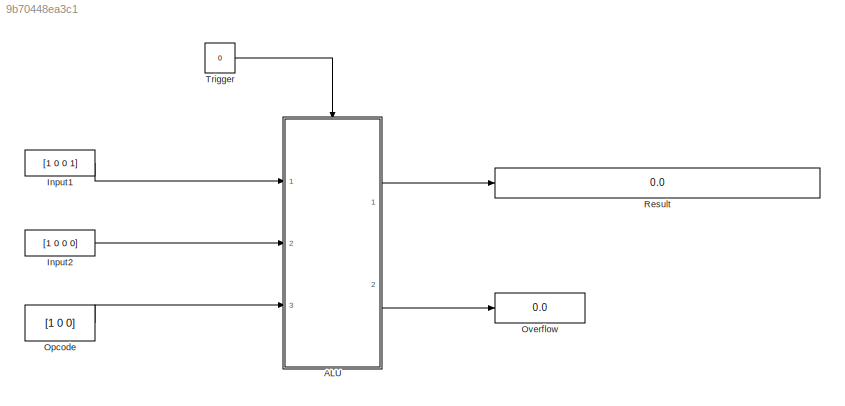
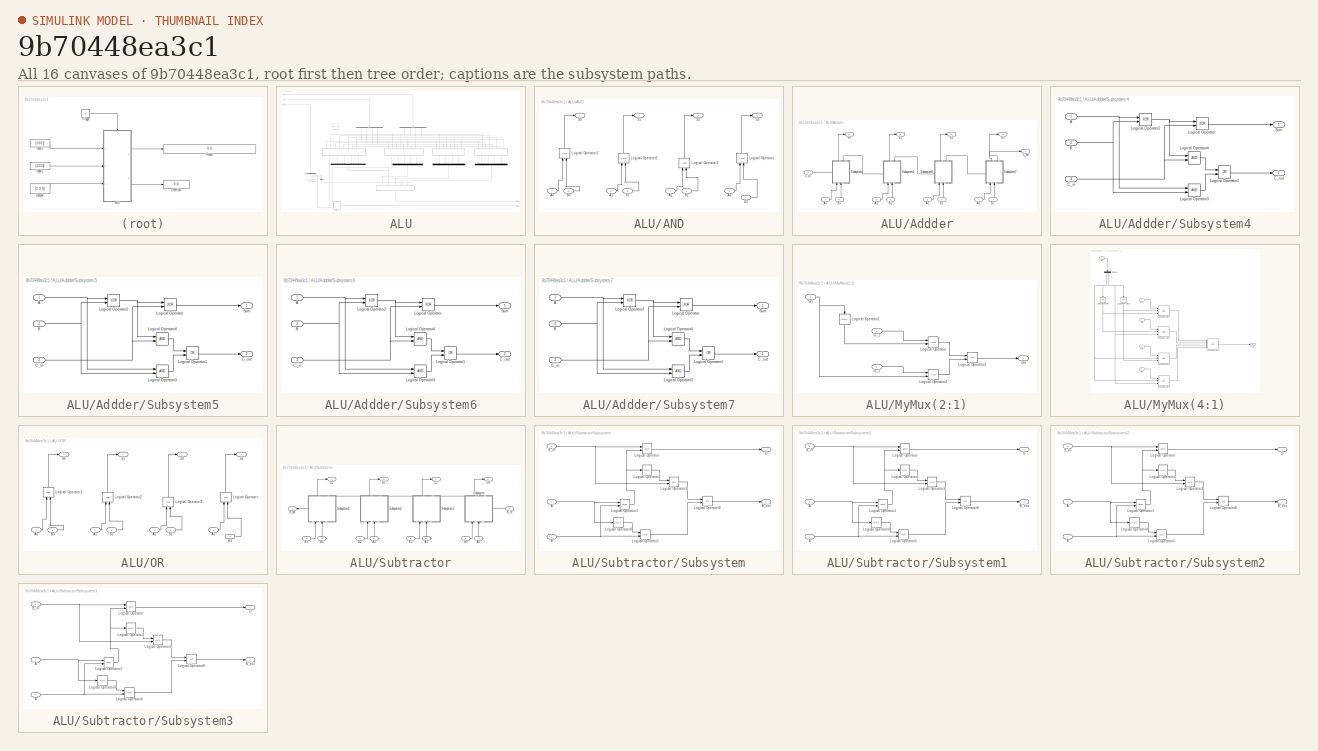
[diagram: thumbnail index - all 16 canvases of the model, root first then tree order]
MODEL slx_9b70448ea3c1
KIND model
CONFIG AbsTol = auto
CONFIG EnableMultiTasking = off
CONFIG FixedStep = auto
CONFIG MaxStep = auto
CONFIG MinStep = auto
CONFIG RelTol = 1e-3
CONFIG SampleTimeConstraint = Unconstrained
CONFIG SolverName = VariableStepAuto
CONFIG StartTime = 0.0
CONFIG StopTime = 10.0
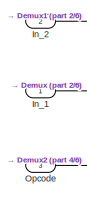
[diagram: ALU - part 1/6, top left region]
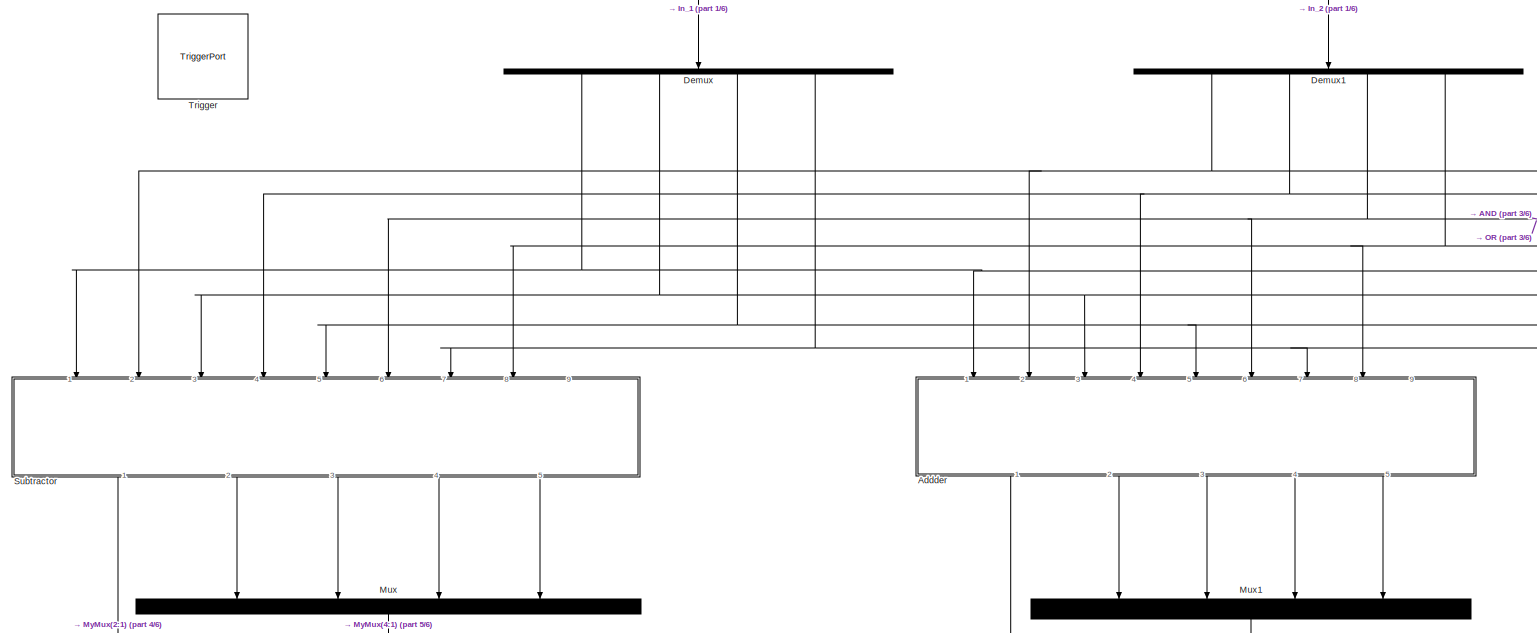
[diagram: ALU - part 2/6, central region]
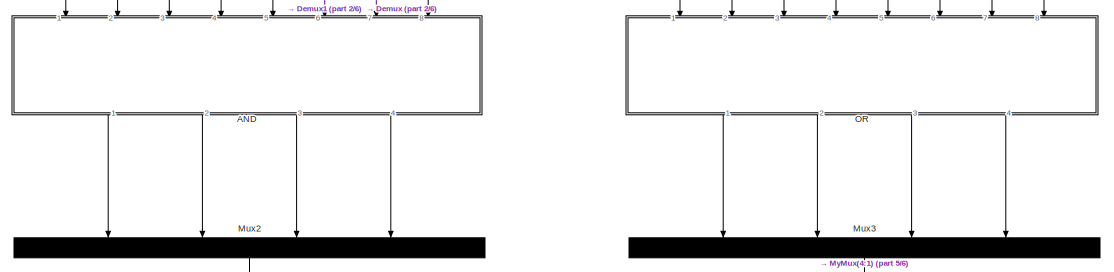
[diagram: ALU - part 3/6, middle right region]
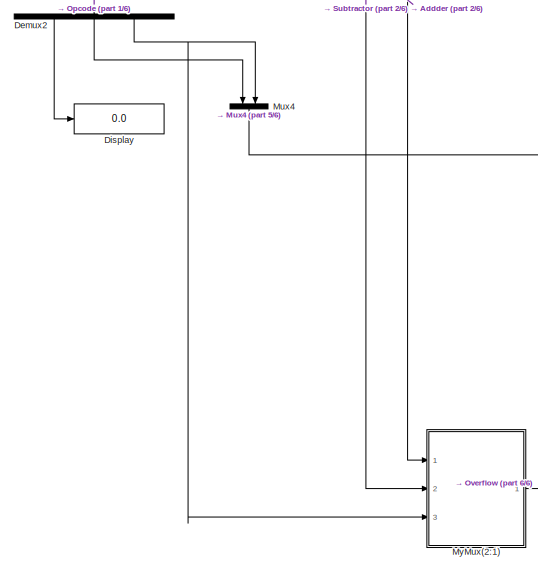
[diagram: ALU - part 4/6, bottom left region]
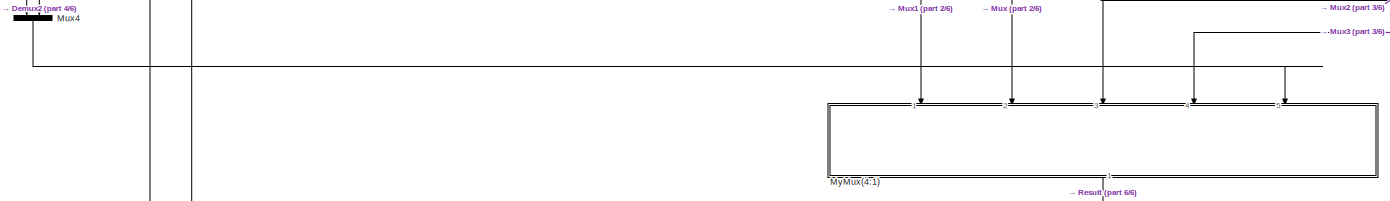
[diagram: ALU - part 5/6, bottom center region]
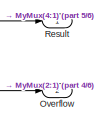
[diagram: ALU - part 6/6, bottom right region]
BLOCK [SubSystem] ALU
  Ports = [3, 2, 0, 1]
  RequestExecContextInheritance = off
BLOCK [SubSystem] ALU/AND
  NameLocation = left
  Ports = [8, 4]
  RequestExecContextInheritance = off
BLOCK [Inport] ALU/AND/A0
  Port = 7
BLOCK [Inport] ALU/AND/A1
  Port = 5
BLOCK [Inport] ALU/AND/A2
  Port = 3
BLOCK [Inport] ALU/AND/A3
BLOCK [Inport] ALU/AND/B0
  Port = 8
BLOCK [Inport] ALU/AND/B1
  Port = 6
BLOCK [Inport] ALU/AND/B2
  Port = 4
BLOCK [Inport] ALU/AND/B3
  Port = 2
BLOCK [Logic] ALU/AND/Logical Operator
  AllPortsSameDT = off
  NameLocation = right
  OutDataTypeStr = boolean
  Ports = [2, 1]
BLOCK [Logic] ALU/AND/Logical Operator1
  AllPortsSameDT = off
  NameLocation = right
  OutDataTypeStr = boolean
  Ports = [2, 1]
BLOCK [Logic] ALU/AND/Logical Operator2
  AllPortsSameDT = off
  NameLocation = right
  OutDataTypeStr = boolean
  Ports = [2, 1]
BLOCK [Logic] ALU/AND/Logical Operator3
  AllPortsSameDT = off
  NameLocation = right
  OutDataTypeStr = boolean
  Ports = [2, 1]
BLOCK [Outport] ALU/AND/S0
  Port = 4
BLOCK [Outport] ALU/AND/S1
  Port = 3
BLOCK [Outport] ALU/AND/S2
  Port = 2
BLOCK [Outport] ALU/AND/S3
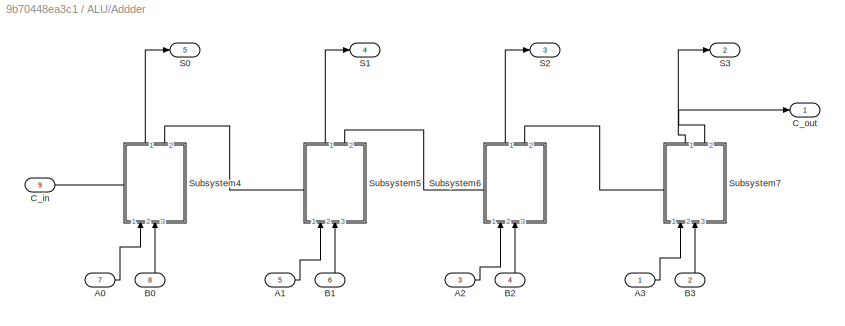
BLOCK [SubSystem] ALU/Addder
  NameLocation = left
  Ports = [9, 5]
  RequestExecContextInheritance = off
BLOCK [Inport] ALU/Addder/A0
  Port = 7
BLOCK [Inport] ALU/Addder/A1
  Port = 5
BLOCK [Inport] ALU/Addder/A2
  Port = 3
BLOCK [Inport] ALU/Addder/A3
BLOCK [Inport] ALU/Addder/B0
  Port = 8
BLOCK [Inport] ALU/Addder/B1
  Port = 6
BLOCK [Inport] ALU/Addder/B2
  Port = 4
BLOCK [Inport] ALU/Addder/B3
  Port = 2
BLOCK [Inport] ALU/Addder/C_in
  Port = 9
BLOCK [Outport] ALU/Addder/C_out
BLOCK [Outport] ALU/Addder/S0
  Port = 5
BLOCK [Outport] ALU/Addder/S1
  Port = 4
BLOCK [Outport] ALU/Addder/S2
  Port = 3
BLOCK [Outport] ALU/Addder/S3
  Port = 2
BLOCK [SubSystem] ALU/Addder/Subsystem4
  NameLocation = right
  PortSchema = {"entries":[{"content":{"sides":[{"content":{"connectorIds":["In1","In2"]},"type":"ConnectorPlacement.EquallySpacedRectSide","uuid":"38d1d783-1e84-469f-b88f-34400794f458"},{"content":{"connectorIds":["Out1","Out2"],"side":"RIGHT"},"type":"ConnectorPlacement.EquallySpacedRectSide","uuid":"9549b396-3b16-432f-9c12-dae7a5b8dc11"},{"content":{"connectorIds":["In3"],"side":"TOP"},"type":"ConnectorPlacem...<+258ch>  <repeated x4 — deduplicated; at blocks: Subsystem4, Subsystem5, Subsystem6, Subsystem7>
  Ports = [3, 2]
  RequestExecContextInheritance = off
BLOCK [Inport] ALU/Addder/Subsystem4/A
BLOCK [Inport] ALU/Addder/Subsystem4/B
  Port = 2
BLOCK [Inport] ALU/Addder/Subsystem4/C_in
  Port = 3
BLOCK [Outport] ALU/Addder/Subsystem4/C_out
  Port = 2
BLOCK [Logic] ALU/Addder/Subsystem4/Logical Operator
  AllPortsSameDT = off
  Operator = XOR
  OutDataTypeStr = boolean
  Ports = [2, 1]
BLOCK [Logic] ALU/Addder/Subsystem4/Logical Operator1
  AllPortsSameDT = off
  Operator = OR
  OutDataTypeStr = boolean
  Ports = [2, 1]
BLOCK [Logic] ALU/Addder/Subsystem4/Logical Operator2
  AllPortsSameDT = off
  Operator = XOR
  OutDataTypeStr = boolean
  Ports = [2, 1]
BLOCK [Logic] ALU/Addder/Subsystem4/Logical Operator3
  AllPortsSameDT = off
  OutDataTypeStr = boolean
  Ports = [2, 1]
BLOCK [Logic] ALU/Addder/Subsystem4/Logical Operator4
  AllPortsSameDT = off
  OutDataTypeStr = boolean
  Ports = [2, 1]
BLOCK [Outport] ALU/Addder/Subsystem4/Sum
BLOCK [SubSystem] ALU/Addder/Subsystem5
  NameLocation = right
  Ports = [3, 2]
  RequestExecContextInheritance = off
BLOCK [Inport] ALU/Addder/Subsystem5/A
BLOCK [Inport] ALU/Addder/Subsystem5/B
  Port = 2
BLOCK [Inport] ALU/Addder/Subsystem5/C_in
  Port = 3
BLOCK [Outport] ALU/Addder/Subsystem5/C_out
  Port = 2
BLOCK [Logic] ALU/Addder/Subsystem5/Logical Operator
  AllPortsSameDT = off
  Operator = XOR
  OutDataTypeStr = boolean
  Ports = [2, 1]
BLOCK [Logic] ALU/Addder/Subsystem5/Logical Operator1
  AllPortsSameDT = off
  Operator = OR
  OutDataTypeStr = boolean
  Ports = [2, 1]
BLOCK [Logic] ALU/Addder/Subsystem5/Logical Operator2
  AllPortsSameDT = off
  Operator = XOR
  OutDataTypeStr = boolean
  Ports = [2, 1]
BLOCK [Logic] ALU/Addder/Subsystem5/Logical Operator3
  AllPortsSameDT = off
  OutDataTypeStr = boolean
  Ports = [2, 1]
BLOCK [Logic] ALU/Addder/Subsystem5/Logical Operator4
  AllPortsSameDT = off
  OutDataTypeStr = boolean
  Ports = [2, 1]
BLOCK [Outport] ALU/Addder/Subsystem5/Sum
BLOCK [SubSystem] ALU/Addder/Subsystem6
  NameLocation = right
  Ports = [3, 2]
  RequestExecContextInheritance = off
BLOCK [Inport] ALU/Addder/Subsystem6/A
BLOCK [Inport] ALU/Addder/Subsystem6/B
  Port = 2
BLOCK [Inport] ALU/Addder/Subsystem6/C_in
  Port = 3
BLOCK [Outport] ALU/Addder/Subsystem6/C_out
  Port = 2
BLOCK [Logic] ALU/Addder/Subsystem6/Logical Operator
  AllPortsSameDT = off
  Operator = XOR
  OutDataTypeStr = boolean
  Ports = [2, 1]
BLOCK [Logic] ALU/Addder/Subsystem6/Logical Operator1
  AllPortsSameDT = off
  Operator = OR
  OutDataTypeStr = boolean
  Ports = [2, 1]
BLOCK [Logic] ALU/Addder/Subsystem6/Logical Operator2
  AllPortsSameDT = off
  Operator = XOR
  OutDataTypeStr = boolean
  Ports = [2, 1]
BLOCK [Logic] ALU/Addder/Subsystem6/Logical Operator3
  AllPortsSameDT = off
  OutDataTypeStr = boolean
  Ports = [2, 1]
BLOCK [Logic] ALU/Addder/Subsystem6/Logical Operator4
  AllPortsSameDT = off
  OutDataTypeStr = boolean
  Ports = [2, 1]
BLOCK [Outport] ALU/Addder/Subsystem6/Sum
BLOCK [SubSystem] ALU/Addder/Subsystem7
  NameLocation = right
  Ports = [3, 2]
  RequestExecContextInheritance = off
BLOCK [Inport] ALU/Addder/Subsystem7/A
BLOCK [Inport] ALU/Addder/Subsystem7/B
  Port = 2
BLOCK [Inport] ALU/Addder/Subsystem7/C_in
  Port = 3
BLOCK [Outport] ALU/Addder/Subsystem7/C_out
  Port = 2
BLOCK [Logic] ALU/Addder/Subsystem7/Logical Operator
  AllPortsSameDT = off
  Operator = XOR
  OutDataTypeStr = boolean
  Ports = [2, 1]
BLOCK [Logic] ALU/Addder/Subsystem7/Logical Operator1
  AllPortsSameDT = off
  Operator = OR
  OutDataTypeStr = boolean
  Ports = [2, 1]
BLOCK [Logic] ALU/Addder/Subsystem7/Logical Operator2
  AllPortsSameDT = off
  Operator = XOR
  OutDataTypeStr = boolean
  Ports = [2, 1]
BLOCK [Logic] ALU/Addder/Subsystem7/Logical Operator3
  AllPortsSameDT = off
  OutDataTypeStr = boolean
  Ports = [2, 1]
BLOCK [Logic] ALU/Addder/Subsystem7/Logical Operator4
  AllPortsSameDT = off
  OutDataTypeStr = boolean
  Ports = [2, 1]
BLOCK [Outport] ALU/Addder/Subsystem7/Sum
BLOCK [Demux] ALU/Demux
  NameLocation = left
  Ports = [1, 4]
BLOCK [Demux] ALU/Demux1
  NameLocation = left
  Ports = [1, 4]
BLOCK [Demux] ALU/Demux2
  NameLocation = left
  Outputs = 3
  Ports = [1, 3]
BLOCK [Display] ALU/Display
  Decimation = 1
  Ports = [1]
BLOCK [Inport] ALU/In_1
BLOCK [Inport] ALU/In_2
  Port = 2
BLOCK [Mux] ALU/Mux
  DisplayOption = bar
  NameLocation = left
  Ports = [4, 1]
BLOCK [Mux] ALU/Mux1
  DisplayOption = bar
  NameLocation = left
  Ports = [4, 1]
BLOCK [Mux] ALU/Mux2
  DisplayOption = bar
  NameLocation = left
  Ports = [4, 1]
BLOCK [Mux] ALU/Mux3
  DisplayOption = bar
  NameLocation = left
  Ports = [4, 1]
BLOCK [Mux] ALU/Mux4
  DisplayOption = bar
  Inputs = 2
  NameLocation = left
  Ports = [2, 1]
BLOCK [SubSystem] ALU/MyMux(2:1)
  Ports = [3, 1]
  RequestExecContextInheritance = off
BLOCK [Inport] ALU/MyMux(2:1)/In_1
BLOCK [Inport] ALU/MyMux(2:1)/In_2
  Port = 2
BLOCK [Logic] ALU/MyMux(2:1)/Logical Operator
  AllPortsSameDT = off
  OutDataTypeStr = boolean
  Ports = [2, 1]
BLOCK [Logic] ALU/MyMux(2:1)/Logical Operator1
  AllPortsSameDT = off
  NameLocation = left
  Operator = NOT
  OutDataTypeStr = boolean
  Ports = [1, 1]
BLOCK [Logic] ALU/MyMux(2:1)/Logical Operator2
  AllPortsSameDT = off
  OutDataTypeStr = boolean
  Ports = [2, 1]
BLOCK [Logic] ALU/MyMux(2:1)/Logical Operator3
  AllPortsSameDT = off
  Operator = OR
  OutDataTypeStr = boolean
  Ports = [2, 1]
BLOCK [Outport] ALU/MyMux(2:1)/Out
BLOCK [Inport] ALU/MyMux(2:1)/Sel
  Port = 3
BLOCK [SubSystem] ALU/MyMux(4:1)
  NameLocation = left
  Ports = [5, 1]
  RequestExecContextInheritance = off
BLOCK [Inport] ALU/MyMux(4:1)/AND
  Port = 3
BLOCK [Demux] ALU/MyMux(4:1)/Demux2
  NameLocation = left
  Outputs = 2
  Ports = [1, 2]
BLOCK [Inport] ALU/MyMux(4:1)/Diff
  Port = 2
BLOCK [Logic] ALU/MyMux(4:1)/Logical Operator
  AllPortsSameDT = off
  NameLocation = left
  Operator = NOT
  OutDataTypeStr = boolean
  Ports = [1, 1]
BLOCK [Logic] ALU/MyMux(4:1)/Logical Operator1
  AllPortsSameDT = off
  NameLocation = left
  Operator = NOT
  OutDataTypeStr = boolean
  Ports = [1, 1]
BLOCK [Logic] ALU/MyMux(4:1)/Logical Operator2
  AllPortsSameDT = off
  Inputs = 3
  OutDataTypeStr = boolean
  Ports = [3, 1]
BLOCK [Logic] ALU/MyMux(4:1)/Logical Operator3
  AllPortsSameDT = off
  Inputs = 3
  OutDataTypeStr = boolean
  Ports = [3, 1]
BLOCK [Logic] ALU/MyMux(4:1)/Logical Operator4
  AllPortsSameDT = off
  Inputs = 3
  OutDataTypeStr = boolean
  Ports = [3, 1]
BLOCK [Logic] ALU/MyMux(4:1)/Logical Operator5
  AllPortsSameDT = off
  Inputs = 3
  OutDataTypeStr = boolean
  Ports = [3, 1]
BLOCK [Logic] ALU/MyMux(4:1)/Logical Operator6
  AllPortsSameDT = off
  Inputs = 4
  Operator = OR
  OutDataTypeStr = boolean
  Ports = [4, 1]
BLOCK [Inport] ALU/MyMux(4:1)/OR
  Port = 4
BLOCK [Outport] ALU/MyMux(4:1)/Out
BLOCK [Inport] ALU/MyMux(4:1)/Sel
  Port = 5
BLOCK [Inport] ALU/MyMux(4:1)/Sum
BLOCK [SubSystem] ALU/OR
  NameLocation = left
  Ports = [8, 4]
  RequestExecContextInheritance = off
BLOCK [Inport] ALU/OR/A0
  Port = 7
BLOCK [Inport] ALU/OR/A1
  Port = 5
BLOCK [Inport] ALU/OR/A2
  Port = 3
BLOCK [Inport] ALU/OR/A3
BLOCK [Inport] ALU/OR/B0
  Port = 8
BLOCK [Inport] ALU/OR/B1
  Port = 6
BLOCK [Inport] ALU/OR/B2
  Port = 4
BLOCK [Inport] ALU/OR/B3
  Port = 2
BLOCK [Logic] ALU/OR/Logical Operator
  AllPortsSameDT = off
  NameLocation = right
  Operator = OR
  OutDataTypeStr = boolean
  Ports = [2, 1]
BLOCK [Logic] ALU/OR/Logical Operator1
  AllPortsSameDT = off
  NameLocation = right
  Operator = OR
  OutDataTypeStr = boolean
  Ports = [2, 1]
BLOCK [Logic] ALU/OR/Logical Operator2
  AllPortsSameDT = off
  NameLocation = right
  Operator = OR
  OutDataTypeStr = boolean
  Ports = [2, 1]
BLOCK [Logic] ALU/OR/Logical Operator3
  AllPortsSameDT = off
  NameLocation = right
  Operator = OR
  OutDataTypeStr = boolean
  Ports = [2, 1]
BLOCK [Outport] ALU/OR/S0
  Port = 4
BLOCK [Outport] ALU/OR/S1
  Port = 3
BLOCK [Outport] ALU/OR/S2
  Port = 2
BLOCK [Outport] ALU/OR/S3
BLOCK [Inport] ALU/Opcode
  Port = 3
BLOCK [Outport] ALU/Overflow
  Port = 2
BLOCK [Outport] ALU/Result
BLOCK [SubSystem] ALU/Subtractor
  NameLocation = left
  Ports = [9, 5]
  RequestExecContextInheritance = off
BLOCK [Inport] ALU/Subtractor/A0
  Port = 7
BLOCK [Inport] ALU/Subtractor/A1
  Port = 5
BLOCK [Inport] ALU/Subtractor/A2
  Port = 3
BLOCK [Inport] ALU/Subtractor/A3
BLOCK [Inport] ALU/Subtractor/B0
  Port = 8
BLOCK [Inport] ALU/Subtractor/B1
  Port = 6
BLOCK [Inport] ALU/Subtractor/B2
  Port = 4
BLOCK [Inport] ALU/Subtractor/B3
  Port = 2
BLOCK [Inport] ALU/Subtractor/B_in
  Port = 9
BLOCK [Outport] ALU/Subtractor/B_out
BLOCK [Outport] ALU/Subtractor/D0
  Port = 5
BLOCK [Outport] ALU/Subtractor/D1
  Port = 4
BLOCK [Outport] ALU/Subtractor/D2
  Port = 3
BLOCK [Outport] ALU/Subtractor/D3
  Port = 2
BLOCK [SubSystem] ALU/Subtractor/Subsystem
  NameLocation = right
  PortSchema = {"entries":[{"content":{"sides":[{"content":{"connectorIds":["In1","In2"]},"type":"ConnectorPlacement.EquallySpacedRectSide","uuid":"38d1d783-1e84-469f-b88f-34400794f458"},{"content":{"connectorIds":["Out1"],"side":"RIGHT"},"type":"ConnectorPlacement.EquallySpacedRectSide","uuid":"9549b396-3b16-432f-9c12-dae7a5b8dc11"},{"content":{"connectorIds":["Out2"],"side":"TOP"},"type":"ConnectorPlacement.Eq...<+401ch>  <repeated x4 — deduplicated; at blocks: Subsystem, Subsystem1, Subsystem2, Subsystem3>
  Ports = [3, 2]
  RequestExecContextInheritance = off
BLOCK [Inport] ALU/Subtractor/Subsystem/A
  Port = 2
BLOCK [Inport] ALU/Subtractor/Subsystem/B
BLOCK [Inport] ALU/Subtractor/Subsystem/B_in
  Port = 3
BLOCK [Outport] ALU/Subtractor/Subsystem/B_out
  Port = 2
BLOCK [Outport] ALU/Subtractor/Subsystem/D
BLOCK [Logic] ALU/Subtractor/Subsystem/Logical Operator
  AllPortsSameDT = off
  Operator = XOR
  OutDataTypeStr = boolean
  Ports = [2, 1]
BLOCK [Logic] ALU/Subtractor/Subsystem/Logical Operator1
  AllPortsSameDT = off
  Operator = XOR
  OutDataTypeStr = boolean
  Ports = [2, 1]
BLOCK [Logic] ALU/Subtractor/Subsystem/Logical Operator2
  AllPortsSameDT = off
  Operator = NOT
  OutDataTypeStr = boolean
  Ports = [1, 1]
BLOCK [Logic] ALU/Subtractor/Subsystem/Logical Operator3
  AllPortsSameDT = off
  OutDataTypeStr = boolean
  Ports = [2, 1]
BLOCK [Logic] ALU/Subtractor/Subsystem/Logical Operator4
  AllPortsSameDT = off
  Operator = NOT
  OutDataTypeStr = boolean
  Ports = [1, 1]
BLOCK [Logic] ALU/Subtractor/Subsystem/Logical Operator5
  AllPortsSameDT = off
  OutDataTypeStr = boolean
  Ports = [2, 1]
BLOCK [Logic] ALU/Subtractor/Subsystem/Logical Operator8
  AllPortsSameDT = off
  Operator = OR
  OutDataTypeStr = boolean
  Ports = [2, 1]
BLOCK [SubSystem] ALU/Subtractor/Subsystem1
  NameLocation = right
  Ports = [3, 2]
  RequestExecContextInheritance = off
BLOCK [Inport] ALU/Subtractor/Subsystem1/A
  Port = 2
BLOCK [Inport] ALU/Subtractor/Subsystem1/B
BLOCK [Inport] ALU/Subtractor/Subsystem1/B_in
  Port = 3
BLOCK [Outport] ALU/Subtractor/Subsystem1/B_out
  Port = 2
BLOCK [Outport] ALU/Subtractor/Subsystem1/D
BLOCK [Logic] ALU/Subtractor/Subsystem1/Logical Operator
  AllPortsSameDT = off
  Operator = XOR
  OutDataTypeStr = boolean
  Ports = [2, 1]
BLOCK [Logic] ALU/Subtractor/Subsystem1/Logical Operator1
  AllPortsSameDT = off
  Operator = XOR
  OutDataTypeStr = boolean
  Ports = [2, 1]
BLOCK [Logic] ALU/Subtractor/Subsystem1/Logical Operator2
  AllPortsSameDT = off
  Operator = NOT
  OutDataTypeStr = boolean
  Ports = [1, 1]
BLOCK [Logic] ALU/Subtractor/Subsystem1/Logical Operator3
  AllPortsSameDT = off
  OutDataTypeStr = boolean
  Ports = [2, 1]
BLOCK [Logic] ALU/Subtractor/Subsystem1/Logical Operator4
  AllPortsSameDT = off
  Operator = NOT
  OutDataTypeStr = boolean
  Ports = [1, 1]
BLOCK [Logic] ALU/Subtractor/Subsystem1/Logical Operator5
  AllPortsSameDT = off
  OutDataTypeStr = boolean
  Ports = [2, 1]
BLOCK [Logic] ALU/Subtractor/Subsystem1/Logical Operator8
  AllPortsSameDT = off
  Operator = OR
  OutDataTypeStr = boolean
  Ports = [2, 1]
BLOCK [SubSystem] ALU/Subtractor/Subsystem2
  NameLocation = right
  Ports = [3, 2]
  RequestExecContextInheritance = off
BLOCK [Inport] ALU/Subtractor/Subsystem2/A
  Port = 2
BLOCK [Inport] ALU/Subtractor/Subsystem2/B
BLOCK [Inport] ALU/Subtractor/Subsystem2/B_in
  Port = 3
BLOCK [Outport] ALU/Subtractor/Subsystem2/B_out
  Port = 2
BLOCK [Outport] ALU/Subtractor/Subsystem2/D
BLOCK [Logic] ALU/Subtractor/Subsystem2/Logical Operator
  AllPortsSameDT = off
  Operator = XOR
  OutDataTypeStr = boolean
  Ports = [2, 1]
BLOCK [Logic] ALU/Subtractor/Subsystem2/Logical Operator1
  AllPortsSameDT = off
  Operator = XOR
  OutDataTypeStr = boolean
  Ports = [2, 1]
BLOCK [Logic] ALU/Subtractor/Subsystem2/Logical Operator2
  AllPortsSameDT = off
  Operator = NOT
  OutDataTypeStr = boolean
  Ports = [1, 1]
BLOCK [Logic] ALU/Subtractor/Subsystem2/Logical Operator3
  AllPortsSameDT = off
  OutDataTypeStr = boolean
  Ports = [2, 1]
BLOCK [Logic] ALU/Subtractor/Subsystem2/Logical Operator4
  AllPortsSameDT = off
  Operator = NOT
  OutDataTypeStr = boolean
  Ports = [1, 1]
BLOCK [Logic] ALU/Subtractor/Subsystem2/Logical Operator5
  AllPortsSameDT = off
  OutDataTypeStr = boolean
  Ports = [2, 1]
BLOCK [Logic] ALU/Subtractor/Subsystem2/Logical Operator8
  AllPortsSameDT = off
  Operator = OR
  OutDataTypeStr = boolean
  Ports = [2, 1]
BLOCK [SubSystem] ALU/Subtractor/Subsystem3
  NameLocation = right
  Ports = [3, 2]
  RequestExecContextInheritance = off
BLOCK [Inport] ALU/Subtractor/Subsystem3/A
  Port = 2
BLOCK [Inport] ALU/Subtractor/Subsystem3/B
BLOCK [Inport] ALU/Subtractor/Subsystem3/B_in
  Port = 3
BLOCK [Outport] ALU/Subtractor/Subsystem3/B_out
  Port = 2
BLOCK [Outport] ALU/Subtractor/Subsystem3/D
BLOCK [Logic] ALU/Subtractor/Subsystem3/Logical Operator
  AllPortsSameDT = off
  Operator = XOR
  OutDataTypeStr = boolean
  Ports = [2, 1]
BLOCK [Logic] ALU/Subtractor/Subsystem3/Logical Operator1
  AllPortsSameDT = off
  Operator = XOR
  OutDataTypeStr = boolean
  Ports = [2, 1]
BLOCK [Logic] ALU/Subtractor/Subsystem3/Logical Operator2
  AllPortsSameDT = off
  Operator = NOT
  OutDataTypeStr = boolean
  Ports = [1, 1]
BLOCK [Logic] ALU/Subtractor/Subsystem3/Logical Operator3
  AllPortsSameDT = off
  OutDataTypeStr = boolean
  Ports = [2, 1]
BLOCK [Logic] ALU/Subtractor/Subsystem3/Logical Operator4
  AllPortsSameDT = off
  Operator = NOT
  OutDataTypeStr = boolean
  Ports = [1, 1]
BLOCK [Logic] ALU/Subtractor/Subsystem3/Logical Operator5
  AllPortsSameDT = off
  OutDataTypeStr = boolean
  Ports = [2, 1]
BLOCK [Logic] ALU/Subtractor/Subsystem3/Logical Operator8
  AllPortsSameDT = off
  Operator = OR
  OutDataTypeStr = boolean
  Ports = [2, 1]
BLOCK [TriggerPort] ALU/Trigger
  PortDimensions = 1
  Ports = []
  StatesWhenEnabling = held
  VariantControl = (inherit)
BLOCK [Constant] Input1
  Value = [1 0 0 1]
BLOCK [Constant] Input2
  Value = [1 0 0 0]
BLOCK [Constant] Opcode
  Value = [1 0 0]
BLOCK [Display] Overflow
  Decimation = 1
  Ports = [1]
BLOCK [Display] Result
  Decimation = 1
  Ports = [1]
BLOCK [Constant] Trigger
  Value = 0
LINE ALU/AND/A0:1 -> ALU/AND/Logical Operator1:1
LINE ALU/AND/A1:1 -> ALU/AND/Logical Operator2:1
LINE ALU/AND/A2:1 -> ALU/AND/Logical Operator3:1
LINE ALU/AND/A3:1 -> ALU/AND/Logical Operator:1
LINE ALU/AND/B0:1 -> ALU/AND/Logical Operator1:2
LINE ALU/AND/B1:1 -> ALU/AND/Logical Operator2:2
LINE ALU/AND/B2:1 -> ALU/AND/Logical Operator3:2
LINE ALU/AND/B3:1 -> ALU/AND/Logical Operator:2
LINE ALU/AND/Logical Operator1:1 -> ALU/AND/S0:1
LINE ALU/AND/Logical Operator2:1 -> ALU/AND/S1:1
LINE ALU/AND/Logical Operator3:1 -> ALU/AND/S2:1
LINE ALU/AND/Logical Operator:1 -> ALU/AND/S3:1
LINE ALU/AND:1 -> ALU/Mux2:1
LINE ALU/AND:2 -> ALU/Mux2:2
LINE ALU/AND:3 -> ALU/Mux2:3
LINE ALU/AND:4 -> ALU/Mux2:4
LINE ALU/Addder/A0:1 -> ALU/Addder/Subsystem4:1
LINE ALU/Addder/A1:1 -> ALU/Addder/Subsystem5:1
LINE ALU/Addder/A2:1 -> ALU/Addder/Subsystem6:1
LINE ALU/Addder/A3:1 -> ALU/Addder/Subsystem7:1
LINE ALU/Addder/B0:1 -> ALU/Addder/Subsystem4:2
LINE ALU/Addder/B1:1 -> ALU/Addder/Subsystem5:2
LINE ALU/Addder/B2:1 -> ALU/Addder/Subsystem6:2
LINE ALU/Addder/B3:1 -> ALU/Addder/Subsystem7:2
LINE ALU/Addder/C_in:1 -> ALU/Addder/Subsystem4:3
NET ALU/Addder/Subsystem4/A:1 -> ALU/Addder/Subsystem4/Logical Operator2:1, ALU/Addder/Subsystem4/Logical Operator3:1
NET ALU/Addder/Subsystem4/B:1 -> ALU/Addder/Subsystem4/Logical Operator2:2, ALU/Addder/Subsystem4/Logical Operator3:2
NET ALU/Addder/Subsystem4/C_in:1 -> ALU/Addder/Subsystem4/Logical Operator4:2, ALU/Addder/Subsystem4/Logical Operator:2
LINE ALU/Addder/Subsystem4/Logical Operator1:1 -> ALU/Addder/Subsystem4/C_out:1
NET ALU/Addder/Subsystem4/Logical Operator2:1 -> ALU/Addder/Subsystem4/Logical Operator4:1, ALU/Addder/Subsystem4/Logical Operator:1
LINE ALU/Addder/Subsystem4/Logical Operator3:1 -> ALU/Addder/Subsystem4/Logical Operator1:2
LINE ALU/Addder/Subsystem4/Logical Operator4:1 -> ALU/Addder/Subsystem4/Logical Operator1:1
LINE ALU/Addder/Subsystem4/Logical Operator:1 -> ALU/Addder/Subsystem4/Sum:1
LINE ALU/Addder/Subsystem4:1 -> ALU/Addder/S0:1
LINE ALU/Addder/Subsystem4:2 -> ALU/Addder/Subsystem5:3
NET ALU/Addder/Subsystem5/A:1 -> ALU/Addder/Subsystem5/Logical Operator2:1, ALU/Addder/Subsystem5/Logical Operator3:1
NET ALU/Addder/Subsystem5/B:1 -> ALU/Addder/Subsystem5/Logical Operator2:2, ALU/Addder/Subsystem5/Logical Operator3:2
NET ALU/Addder/Subsystem5/C_in:1 -> ALU/Addder/Subsystem5/Logical Operator4:2, ALU/Addder/Subsystem5/Logical Operator:2
LINE ALU/Addder/Subsystem5/Logical Operator1:1 -> ALU/Addder/Subsystem5/C_out:1
NET ALU/Addder/Subsystem5/Logical Operator2:1 -> ALU/Addder/Subsystem5/Logical Operator4:1, ALU/Addder/Subsystem5/Logical Operator:1
LINE ALU/Addder/Subsystem5/Logical Operator3:1 -> ALU/Addder/Subsystem5/Logical Operator1:2
LINE ALU/Addder/Subsystem5/Logical Operator4:1 -> ALU/Addder/Subsystem5/Logical Operator1:1
LINE ALU/Addder/Subsystem5/Logical Operator:1 -> ALU/Addder/Subsystem5/Sum:1
LINE ALU/Addder/Subsystem5:1 -> ALU/Addder/S1:1
LINE ALU/Addder/Subsystem5:2 -> ALU/Addder/Subsystem6:3
NET ALU/Addder/Subsystem6/A:1 -> ALU/Addder/Subsystem6/Logical Operator2:1, ALU/Addder/Subsystem6/Logical Operator3:1
NET ALU/Addder/Subsystem6/B:1 -> ALU/Addder/Subsystem6/Logical Operator2:2, ALU/Addder/Subsystem6/Logical Operator3:2
NET ALU/Addder/Subsystem6/C_in:1 -> ALU/Addder/Subsystem6/Logical Operator4:2, ALU/Addder/Subsystem6/Logical Operator:2
LINE ALU/Addder/Subsystem6/Logical Operator1:1 -> ALU/Addder/Subsystem6/C_out:1
NET ALU/Addder/Subsystem6/Logical Operator2:1 -> ALU/Addder/Subsystem6/Logical Operator4:1, ALU/Addder/Subsystem6/Logical Operator:1
LINE ALU/Addder/Subsystem6/Logical Operator3:1 -> ALU/Addder/Subsystem6/Logical Operator1:2
LINE ALU/Addder/Subsystem6/Logical Operator4:1 -> ALU/Addder/Subsystem6/Logical Operator1:1
LINE ALU/Addder/Subsystem6/Logical Operator:1 -> ALU/Addder/Subsystem6/Sum:1
LINE ALU/Addder/Subsystem6:1 -> ALU/Addder/S2:1
LINE ALU/Addder/Subsystem6:2 -> ALU/Addder/Subsystem7:3
NET ALU/Addder/Subsystem7/A:1 -> ALU/Addder/Subsystem7/Logical Operator2:1, ALU/Addder/Subsystem7/Logical Operator3:1
NET ALU/Addder/Subsystem7/B:1 -> ALU/Addder/Subsystem7/Logical Operator2:2, ALU/Addder/Subsystem7/Logical Operator3:2
NET ALU/Addder/Subsystem7/C_in:1 -> ALU/Addder/Subsystem7/Logical Operator4:2, ALU/Addder/Subsystem7/Logical Operator:2
LINE ALU/Addder/Subsystem7/Logical Operator1:1 -> ALU/Addder/Subsystem7/C_out:1
NET ALU/Addder/Subsystem7/Logical Operator2:1 -> ALU/Addder/Subsystem7/Logical Operator4:1, ALU/Addder/Subsystem7/Logical Operator:1
LINE ALU/Addder/Subsystem7/Logical Operator3:1 -> ALU/Addder/Subsystem7/Logical Operator1:2
LINE ALU/Addder/Subsystem7/Logical Operator4:1 -> ALU/Addder/Subsystem7/Logical Operator1:1
LINE ALU/Addder/Subsystem7/Logical Operator:1 -> ALU/Addder/Subsystem7/Sum:1
LINE ALU/Addder/Subsystem7:1 -> ALU/Addder/S3:1
LINE ALU/Addder/Subsystem7:2 -> ALU/Addder/C_out:1
LINE ALU/Addder:1 -> ALU/MyMux(2:1):1
LINE ALU/Addder:2 -> ALU/Mux1:1
LINE ALU/Addder:3 -> ALU/Mux1:2
LINE ALU/Addder:4 -> ALU/Mux1:3
LINE ALU/Addder:5 -> ALU/Mux1:4
NET ALU/Demux1:1 -> ALU/AND:2, ALU/Addder:2, ALU/OR:2, ALU/Subtractor:2
NET ALU/Demux1:2 -> ALU/AND:4, ALU/Addder:4, ALU/OR:4, ALU/Subtractor:4
NET ALU/Demux1:3 -> ALU/AND:6, ALU/Addder:6, ALU/OR:6, ALU/Subtractor:6
NET ALU/Demux1:4 -> ALU/AND:8, ALU/Addder:8, ALU/OR:8, ALU/Subtractor:8
LINE ALU/Demux2:1 -> ALU/Display:1
LINE ALU/Demux2:2 -> ALU/Mux4:1
NET ALU/Demux2:3 -> ALU/Mux4:2, ALU/MyMux(2:1):3
NET ALU/Demux:1 -> ALU/AND:1, ALU/Addder:1, ALU/OR:1, ALU/Subtractor:1
NET ALU/Demux:2 -> ALU/AND:3, ALU/Addder:3, ALU/OR:3, ALU/Subtractor:3
NET ALU/Demux:3 -> ALU/AND:5, ALU/Addder:5, ALU/OR:5, ALU/Subtractor:5
NET ALU/Demux:4 -> ALU/AND:7, ALU/Addder:7, ALU/OR:7, ALU/Subtractor:7
LINE ALU/In_1:1 -> ALU/Demux:1
LINE ALU/In_2:1 -> ALU/Demux1:1
LINE ALU/Mux1:1 -> ALU/MyMux(4:1):1
LINE ALU/Mux2:1 -> ALU/MyMux(4:1):3
LINE ALU/Mux3:1 -> ALU/MyMux(4:1):4
LINE ALU/Mux4:1 -> ALU/MyMux(4:1):5
LINE ALU/Mux:1 -> ALU/MyMux(4:1):2
LINE ALU/MyMux(2:1)/In_1:1 -> ALU/MyMux(2:1)/Logical Operator:1
LINE ALU/MyMux(2:1)/In_2:1 -> ALU/MyMux(2:1)/Logical Operator2:1
LINE ALU/MyMux(2:1)/Logical Operator1:1 -> ALU/MyMux(2:1)/Logical Operator:2
LINE ALU/MyMux(2:1)/Logical Operator2:1 -> ALU/MyMux(2:1)/Logical Operator3:2
LINE ALU/MyMux(2:1)/Logical Operator3:1 -> ALU/MyMux(2:1)/Out:1
LINE ALU/MyMux(2:1)/Logical Operator:1 -> ALU/MyMux(2:1)/Logical Operator3:1
NET ALU/MyMux(2:1)/Sel:1 -> ALU/MyMux(2:1)/Logical Operator1:1, ALU/MyMux(2:1)/Logical Operator2:2
LINE ALU/MyMux(2:1):1 -> ALU/Overflow:1
LINE ALU/MyMux(4:1)/AND:1 -> ALU/MyMux(4:1)/Logical Operator4:1
NET ALU/MyMux(4:1)/Demux2:1 -> ALU/MyMux(4:1)/Logical Operator4:2, ALU/MyMux(4:1)/Logical Operator5:2, ALU/MyMux(4:1)/Logical Operator:1
NET ALU/MyMux(4:1)/Demux2:2 -> ALU/MyMux(4:1)/Logical Operator1:1, ALU/MyMux(4:1)/Logical Operator3:3, ALU/MyMux(4:1)/Logical Operator5:3
LINE ALU/MyMux(4:1)/Diff:1 -> ALU/MyMux(4:1)/Logical Operator3:1
NET ALU/MyMux(4:1)/Logical Operator1:1 -> ALU/MyMux(4:1)/Logical Operator2:2, ALU/MyMux(4:1)/Logical Operator4:3
LINE ALU/MyMux(4:1)/Logical Operator2:1 -> ALU/MyMux(4:1)/Logical Operator6:1
LINE ALU/MyMux(4:1)/Logical Operator3:1 -> ALU/MyMux(4:1)/Logical Operator6:2
LINE ALU/MyMux(4:1)/Logical Operator4:1 -> ALU/MyMux(4:1)/Logical Operator6:3
LINE ALU/MyMux(4:1)/Logical Operator5:1 -> ALU/MyMux(4:1)/Logical Operator6:4
LINE ALU/MyMux(4:1)/Logical Operator6:1 -> ALU/MyMux(4:1)/Out:1
NET ALU/MyMux(4:1)/Logical Operator:1 -> ALU/MyMux(4:1)/Logical Operator2:3, ALU/MyMux(4:1)/Logical Operator3:2
LINE ALU/MyMux(4:1)/OR:1 -> ALU/MyMux(4:1)/Logical Operator5:1
LINE ALU/MyMux(4:1)/Sel:1 -> ALU/MyMux(4:1)/Demux2:1
LINE ALU/MyMux(4:1)/Sum:1 -> ALU/MyMux(4:1)/Logical Operator2:1
LINE ALU/MyMux(4:1):1 -> ALU/Result:1
LINE ALU/OR/A0:1 -> ALU/OR/Logical Operator1:1
LINE ALU/OR/A1:1 -> ALU/OR/Logical Operator2:1
LINE ALU/OR/A2:1 -> ALU/OR/Logical Operator3:1
LINE ALU/OR/A3:1 -> ALU/OR/Logical Operator:1
LINE ALU/OR/B0:1 -> ALU/OR/Logical Operator1:2
LINE ALU/OR/B1:1 -> ALU/OR/Logical Operator2:2
LINE ALU/OR/B2:1 -> ALU/OR/Logical Operator3:2
LINE ALU/OR/B3:1 -> ALU/OR/Logical Operator:2
LINE ALU/OR/Logical Operator1:1 -> ALU/OR/S0:1
LINE ALU/OR/Logical Operator2:1 -> ALU/OR/S1:1
LINE ALU/OR/Logical Operator3:1 -> ALU/OR/S2:1
LINE ALU/OR/Logical Operator:1 -> ALU/OR/S3:1
LINE ALU/OR:1 -> ALU/Mux3:1
LINE ALU/OR:2 -> ALU/Mux3:2
LINE ALU/OR:3 -> ALU/Mux3:3
LINE ALU/OR:4 -> ALU/Mux3:4
LINE ALU/Opcode:1 -> ALU/Demux2:1
LINE ALU/Subtractor/A0:1 -> ALU/Subtractor/Subsystem:2
LINE ALU/Subtractor/A1:1 -> ALU/Subtractor/Subsystem3:2
LINE ALU/Subtractor/A2:1 -> ALU/Subtractor/Subsystem2:2
LINE ALU/Subtractor/A3:1 -> ALU/Subtractor/Subsystem1:2
LINE ALU/Subtractor/B0:1 -> ALU/Subtractor/Subsystem:1
LINE ALU/Subtractor/B1:1 -> ALU/Subtractor/Subsystem3:1
LINE ALU/Subtractor/B2:1 -> ALU/Subtractor/Subsystem2:1
LINE ALU/Subtractor/B3:1 -> ALU/Subtractor/Subsystem1:1
LINE ALU/Subtractor/B_in:1 -> ALU/Subtractor/Subsystem:3
NET ALU/Subtractor/Subsystem/A:1 -> ALU/Subtractor/Subsystem/Logical Operator1:1, ALU/Subtractor/Subsystem/Logical Operator4:1
NET ALU/Subtractor/Subsystem/B:1 -> ALU/Subtractor/Subsystem/Logical Operator1:2, ALU/Subtractor/Subsystem/Logical Operator5:2
NET ALU/Subtractor/Subsystem/B_in:1 -> ALU/Subtractor/Subsystem/Logical Operator3:2, ALU/Subtractor/Subsystem/Logical Operator:1
NET ALU/Subtractor/Subsystem/Logical Operator1:1 -> ALU/Subtractor/Subsystem/Logical Operator2:1, ALU/Subtractor/Subsystem/Logical Operator:2
LINE ALU/Subtractor/Subsystem/Logical Operator2:1 -> ALU/Subtractor/Subsystem/Logical Operator3:1
LINE ALU/Subtractor/Subsystem/Logical Operator3:1 -> ALU/Subtractor/Subsystem/Logical Operator8:1
LINE ALU/Subtractor/Subsystem/Logical Operator4:1 -> ALU/Subtractor/Subsystem/Logical Operator5:1
LINE ALU/Subtractor/Subsystem/Logical Operator5:1 -> ALU/Subtractor/Subsystem/Logical Operator8:2
LINE ALU/Subtractor/Subsystem/Logical Operator8:1 -> ALU/Subtractor/Subsystem/B_out:1
LINE ALU/Subtractor/Subsystem/Logical Operator:1 -> ALU/Subtractor/Subsystem/D:1
NET ALU/Subtractor/Subsystem1/A:1 -> ALU/Subtractor/Subsystem1/Logical Operator1:1, ALU/Subtractor/Subsystem1/Logical Operator4:1
NET ALU/Subtractor/Subsystem1/B:1 -> ALU/Subtractor/Subsystem1/Logical Operator1:2, ALU/Subtractor/Subsystem1/Logical Operator5:2
NET ALU/Subtractor/Subsystem1/B_in:1 -> ALU/Subtractor/Subsystem1/Logical Operator3:2, ALU/Subtractor/Subsystem1/Logical Operator:1
NET ALU/Subtractor/Subsystem1/Logical Operator1:1 -> ALU/Subtractor/Subsystem1/Logical Operator2:1, ALU/Subtractor/Subsystem1/Logical Operator:2
LINE ALU/Subtractor/Subsystem1/Logical Operator2:1 -> ALU/Subtractor/Subsystem1/Logical Operator3:1
LINE ALU/Subtractor/Subsystem1/Logical Operator3:1 -> ALU/Subtractor/Subsystem1/Logical Operator8:1
LINE ALU/Subtractor/Subsystem1/Logical Operator4:1 -> ALU/Subtractor/Subsystem1/Logical Operator5:1
LINE ALU/Subtractor/Subsystem1/Logical Operator5:1 -> ALU/Subtractor/Subsystem1/Logical Operator8:2
LINE ALU/Subtractor/Subsystem1/Logical Operator8:1 -> ALU/Subtractor/Subsystem1/B_out:1
LINE ALU/Subtractor/Subsystem1/Logical Operator:1 -> ALU/Subtractor/Subsystem1/D:1
LINE ALU/Subtractor/Subsystem1:1 -> ALU/Subtractor/D3:1
LINE ALU/Subtractor/Subsystem1:2 -> ALU/Subtractor/B_out:1
NET ALU/Subtractor/Subsystem2/A:1 -> ALU/Subtractor/Subsystem2/Logical Operator1:1, ALU/Subtractor/Subsystem2/Logical Operator4:1
NET ALU/Subtractor/Subsystem2/B:1 -> ALU/Subtractor/Subsystem2/Logical Operator1:2, ALU/Subtractor/Subsystem2/Logical Operator5:2
NET ALU/Subtractor/Subsystem2/B_in:1 -> ALU/Subtractor/Subsystem2/Logical Operator3:2, ALU/Subtractor/Subsystem2/Logical Operator:1
NET ALU/Subtractor/Subsystem2/Logical Operator1:1 -> ALU/Subtractor/Subsystem2/Logical Operator2:1, ALU/Subtractor/Subsystem2/Logical Operator:2
LINE ALU/Subtractor/Subsystem2/Logical Operator2:1 -> ALU/Subtractor/Subsystem2/Logical Operator3:1
LINE ALU/Subtractor/Subsystem2/Logical Operator3:1 -> ALU/Subtractor/Subsystem2/Logical Operator8:1
LINE ALU/Subtractor/Subsystem2/Logical Operator4:1 -> ALU/Subtractor/Subsystem2/Logical Operator5:1
LINE ALU/Subtractor/Subsystem2/Logical Operator5:1 -> ALU/Subtractor/Subsystem2/Logical Operator8:2
LINE ALU/Subtractor/Subsystem2/Logical Operator8:1 -> ALU/Subtractor/Subsystem2/B_out:1
LINE ALU/Subtractor/Subsystem2/Logical Operator:1 -> ALU/Subtractor/Subsystem2/D:1
LINE ALU/Subtractor/Subsystem2:1 -> ALU/Subtractor/D2:1
LINE ALU/Subtractor/Subsystem2:2 -> ALU/Subtractor/Subsystem1:3
NET ALU/Subtractor/Subsystem3/A:1 -> ALU/Subtractor/Subsystem3/Logical Operator1:1, ALU/Subtractor/Subsystem3/Logical Operator4:1
NET ALU/Subtractor/Subsystem3/B:1 -> ALU/Subtractor/Subsystem3/Logical Operator1:2, ALU/Subtractor/Subsystem3/Logical Operator5:2
NET ALU/Subtractor/Subsystem3/B_in:1 -> ALU/Subtractor/Subsystem3/Logical Operator3:2, ALU/Subtractor/Subsystem3/Logical Operator:1
NET ALU/Subtractor/Subsystem3/Logical Operator1:1 -> ALU/Subtractor/Subsystem3/Logical Operator2:1, ALU/Subtractor/Subsystem3/Logical Operator:2
LINE ALU/Subtractor/Subsystem3/Logical Operator2:1 -> ALU/Subtractor/Subsystem3/Logical Operator3:1
LINE ALU/Subtractor/Subsystem3/Logical Operator3:1 -> ALU/Subtractor/Subsystem3/Logical Operator8:1
LINE ALU/Subtractor/Subsystem3/Logical Operator4:1 -> ALU/Subtractor/Subsystem3/Logical Operator5:1
LINE ALU/Subtractor/Subsystem3/Logical Operator5:1 -> ALU/Subtractor/Subsystem3/Logical Operator8:2
LINE ALU/Subtractor/Subsystem3/Logical Operator8:1 -> ALU/Subtractor/Subsystem3/B_out:1
LINE ALU/Subtractor/Subsystem3/Logical Operator:1 -> ALU/Subtractor/Subsystem3/D:1
LINE ALU/Subtractor/Subsystem3:1 -> ALU/Subtractor/D1:1
LINE ALU/Subtractor/Subsystem3:2 -> ALU/Subtractor/Subsystem2:3
LINE ALU/Subtractor/Subsystem:1 -> ALU/Subtractor/D0:1
LINE ALU/Subtractor/Subsystem:2 -> ALU/Subtractor/Subsystem3:3
LINE ALU/Subtractor:1 -> ALU/MyMux(2:1):2
LINE ALU/Subtractor:2 -> ALU/Mux:1
LINE ALU/Subtractor:3 -> ALU/Mux:2
LINE ALU/Subtractor:4 -> ALU/Mux:3
LINE ALU/Subtractor:5 -> ALU/Mux:4
LINE ALU:1 -> Result:1
LINE ALU:2 -> Overflow:1
LINE Input1:1 -> ALU:1
LINE Input2:1 -> ALU:2
LINE Opcode:1 -> ALU:3
LINE Trigger:1 -> ALU:trigger
note: NET lines group one-source signal fan-out (src -> all destinations, sorted); 1:1 wires keep LINE
